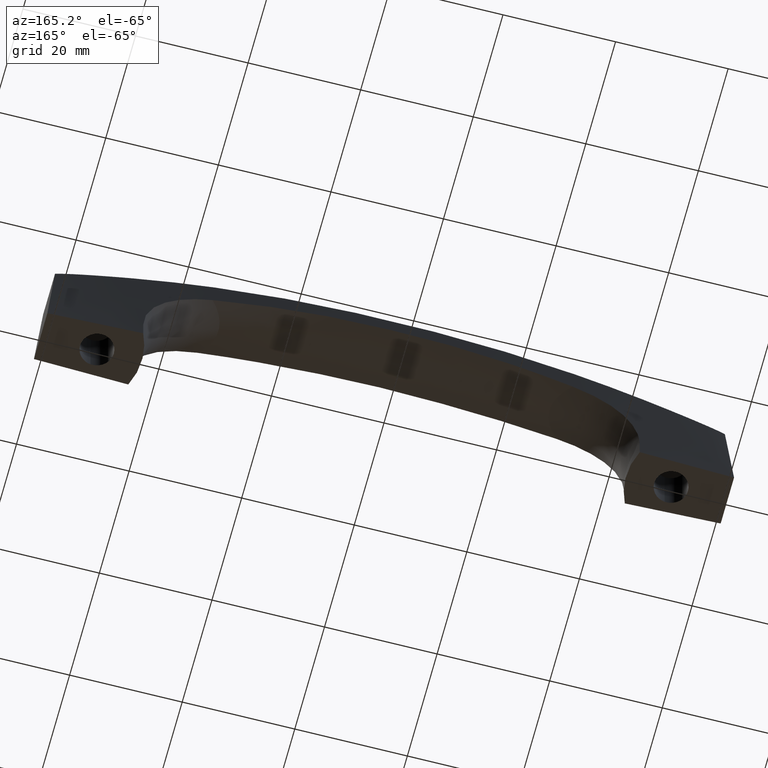
[diagram: clean part render]
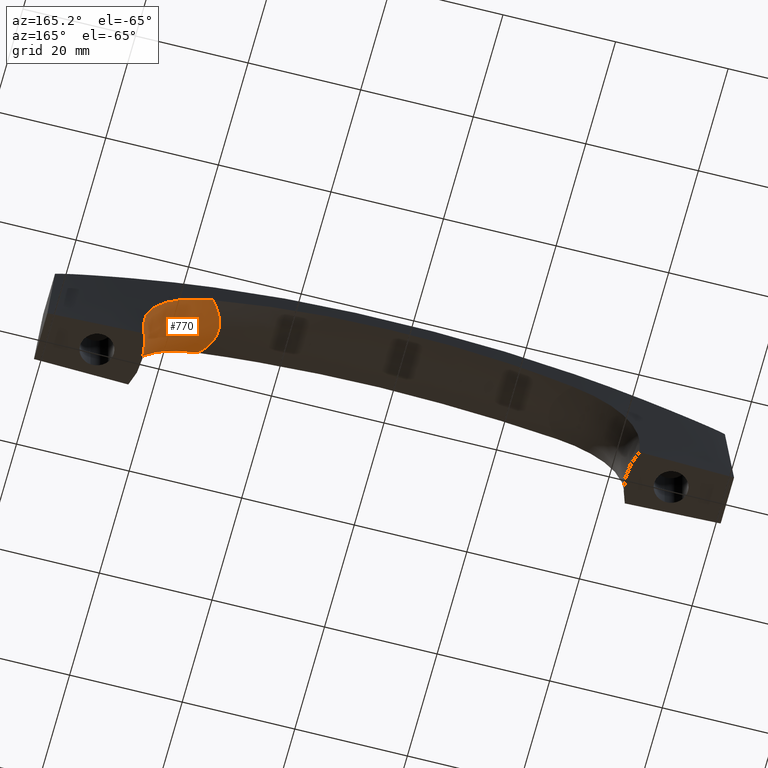
[diagram: same view with one face highlighted and labeled with its STEP entity id]
A machine part, auxiliary view. The second image highlights one B-rep face of the part: STEP entity #770.
In plain terms, the highlighted face is a freeform B-spline surface patch.
Its self-contained STEP definition (entity closure, byte-faithful):
#523=CARTESIAN_POINT('',(44.082250863787102,4.979584519048630,3.605350041675625));
#524=VERTEX_POINT('',#523);
#549=CARTESIAN_POINT('',(44.082879863556499,-4.979579647296540,3.603921780029675));
#550=VERTEX_POINT('',#549);
#558=CARTESIAN_POINT('',(44.082250863787102,4.979584519048630,3.605350041675625));
#559=CARTESIAN_POINT('',(44.061805541953468,4.934754980369749,3.572103161481472));
#560=CARTESIAN_POINT('',(44.041557719643492,4.889628672710915,3.539211358963760));
#561=CARTESIAN_POINT('',(43.814513336354047,4.375093358441645,3.170753038720376));
#562=CARTESIAN_POINT('',(43.628145494150367,3.869373818832388,2.871423095946262));
#563=CARTESIAN_POINT('',(43.172047555760876,2.298523049232081,2.148393828792288));
#564=CARTESIAN_POINT('',(43.003163163210182,1.175548169044361,1.894745840074199));
#565=CARTESIAN_POINT('',(42.998749687705697,-0.541893558222515,1.886695942256058));
#566=CARTESIAN_POINT('',(43.039393928722063,-1.122935938427230,1.947433257691355));
#567=CARTESIAN_POINT('',(43.198337025025189,-2.244635786605662,2.192246502187220));
#568=CARTESIAN_POINT('',(43.316006466822273,-2.788608503984232,2.375161768322997));
#569=CARTESIAN_POINT('',(43.633858211869757,-3.896059069223268,2.877745528504867));
#570=CARTESIAN_POINT('',(43.844006431972772,-4.455527119921518,3.214909279984090));
#571=CARTESIAN_POINT('',(44.082879863556499,-4.979579647296540,3.603921780029675));
#572=B_SPLINE_CURVE_WITH_KNOTS('',3,(#558,#559,#560,#561,#562,#563,#564,#565,#566,#567,#568,#569,#570,#571),.UNSPECIFIED.,.F.,.U.,(4,2,2,2,2,2,4),(0.007838878932541,0.007965946512911,0.009278175349758,0.011902633023452,0.013214861860299,0.014527090697146,0.015998461930642),.UNSPECIFIED.);
#573=EDGE_CURVE('',#524,#550,#572,.T.);
#578=CARTESIAN_POINT('',(45.080294106020588,6.752444310311134,5.134577590753950));
#579=CARTESIAN_POINT('',(45.070049700699457,6.737325087688528,5.177985632299731));
#580=CARTESIAN_POINT('',(42.689084896246413,3.223374223128531,15.266713665880658));
#581=CARTESIAN_POINT('',(33.648056535514471,6.737355394336897,20.341077216990222));
#582=CARTESIAN_POINT('',(33.609078922992460,6.752504843164640,20.362953774434754));
#583=CARTESIAN_POINT('',(44.956754143887970,6.570901175632478,4.926810901028103));
#584=CARTESIAN_POINT('',(44.946885867718812,6.555743561799802,4.970847555976422));
#585=CARTESIAN_POINT('',(42.642876779094841,3.016799228091930,15.252364965321513));
#586=CARTESIAN_POINT('',(33.385628095525313,6.555773946000112,20.288232555321287));
#587=CARTESIAN_POINT('',(33.345899553369676,6.570961861013964,20.309844557405079));
#588=CARTESIAN_POINT('',(44.836221595036456,6.383056194430378,4.725426405553452));
#589=CARTESIAN_POINT('',(44.826757819236590,6.367909003125281,4.770088495405320));
#590=CARTESIAN_POINT('',(42.607010864946311,2.815105927853508,15.245668223530979));
#591=CARTESIAN_POINT('',(33.130693077362082,6.367939367046693,20.235677428537226));
#592=CARTESIAN_POINT('',(33.090210873471008,6.383116836914239,20.256994418383204));
#593=CARTESIAN_POINT('',(44.473508681901670,5.780533417708178,4.123917735728925));
#594=CARTESIAN_POINT('',(44.465366685290313,5.765571454258140,4.170477266344490));
#595=CARTESIAN_POINT('',(42.527998415200628,2.205408679699893,15.249204216316175));
#596=CARTESIAN_POINT('',(32.367555061608627,5.765601448827734,20.074476401256028));
#597=CARTESIAN_POINT('',(32.324769735610658,5.780593315121526,20.094795479496696));
#598=CARTESIAN_POINT('',(44.242837747070247,5.342552049505785,3.746801991625277));
#599=CARTESIAN_POINT('',(44.235692968658356,5.327978716259035,3.794614292987360));
#600=CARTESIAN_POINT('',(42.518800412177349,1.826002037360240,15.283925729117994));
#601=CARTESIAN_POINT('',(31.886911911010984,5.328007932744717,19.967979304592518));
#602=CARTESIAN_POINT('',(31.842579695030686,5.342610388526801,19.987510592448686));
#603=CARTESIAN_POINT('',(43.824778134463294,4.401508337474752,3.070260974938749));
#604=CARTESIAN_POINT('',(43.819670443707913,4.388343948089008,3.120408129333154));
#605=CARTESIAN_POINT('',(42.568806032029570,1.164408323794642,15.401357345572350));
#606=CARTESIAN_POINT('',(31.022045628286513,4.388370342157891,19.769921529466373));
#607=CARTESIAN_POINT('',(30.974802596749186,4.401561032358701,19.787795306031949));
#608=CARTESIAN_POINT('',(43.636322024748488,3.893730465923430,2.768730211596710));
#609=CARTESIAN_POINT('',(43.632262223080851,3.881593175302522,2.819974522333848));
#610=CARTESIAN_POINT('',(42.628879115708841,0.881852455116946,15.485045368642902));
#611=CARTESIAN_POINT('',(30.635186014975332,3.881617510828556,19.677946335019293));
#612=CARTESIAN_POINT('',(30.586561627317643,3.893779047540044,19.694945039278853));
#613=CARTESIAN_POINT('',(43.174776266542054,2.314923449765486,2.040305799656462));
#614=CARTESIAN_POINT('',(43.173452052125739,2.306756390450942,2.094238962909838));
#615=CARTESIAN_POINT('',(42.838387876049914,0.240256459308241,15.740874043779161));
#616=CARTESIAN_POINT('',(29.698035550179835,2.306772767291519,19.447584968716328));
#617=CARTESIAN_POINT('',(29.645999977010302,2.314956136951894,19.462263481344436));
#618=CARTESIAN_POINT('',(43.003303239706170,1.184000520232820,1.784444589659977));
#619=CARTESIAN_POINT('',(43.003282080533815,1.179800046202783,1.839480281311706));
#620=CARTESIAN_POINT('',(42.997875471037446,0.106491392967733,15.902246451079192));
#621=CARTESIAN_POINT('',(29.365455047997749,1.179808469375395,19.355020329536394));
#622=CARTESIAN_POINT('',(29.311997430904686,1.184017331155586,19.368559896111922));
#623=CARTESIAN_POINT('',(42.998857831707944,-0.545737254486875,1.776325831967125));
#624=CARTESIAN_POINT('',(42.998867989871442,-0.543801638653960,1.831394573308226));
#625=CARTESIAN_POINT('',(43.001464272081328,-0.049085743046121,15.906182157336332));
#626=CARTESIAN_POINT('',(29.355155252572978,-0.543805520130713,19.353066703407727));
#627=CARTESIAN_POINT('',(29.301656771416326,-0.545745001102040,19.366579741085072));
#628=CARTESIAN_POINT('',(43.040110239124317,-1.130955790101828,1.837569237739479));
#629=CARTESIAN_POINT('',(43.039821830840530,-1.126936107395765,1.892385262209954));
#630=CARTESIAN_POINT('',(42.966279867934993,-0.101946975389102,15.870062967292180));
#631=CARTESIAN_POINT('',(29.434752030968195,-1.126944167985624,19.375290237335726));
#632=CARTESIAN_POINT('',(29.381580114530166,-1.130971877622747,19.389063970335023));
#633=CARTESIAN_POINT('',(43.201257074791741,-2.260089782233837,2.084338172562199));
#634=CARTESIAN_POINT('',(43.199877936318551,-2.252360209182155,2.138178393424138));
#635=CARTESIAN_POINT('',(42.851289299630672,-0.298646797091987,15.746738776321921));
#636=CARTESIAN_POINT('',(29.753989077762053,-2.252375708546218,19.459285834881264));
#637=CARTESIAN_POINT('',(29.702068507203222,-2.260120718439987,19.474003185651405));
#638=CARTESIAN_POINT('',(43.320520579815948,-2.807360628640942,2.268710204733941));
#639=CARTESIAN_POINT('',(43.318350026800324,-2.797985148824797,2.321823714649160));
#640=CARTESIAN_POINT('',(42.773221675744814,-0.443359477031166,15.661133959879635));
#641=CARTESIAN_POINT('',(29.992151604044079,-2.798003948182839,19.520761034229242));
#642=CARTESIAN_POINT('',(29.941159619583761,-2.807398153332244,19.536159591837762));
#643=CARTESIAN_POINT('',(43.775570233507175,-4.381683786826828,2.984912825330219));
#644=CARTESIAN_POINT('',(43.770650913637951,-4.368256487250542,3.035318932286654));
#645=CARTESIAN_POINT('',(42.563313986358594,-1.072826419074647,15.406369383658740));
#646=CARTESIAN_POINT('',(30.913874078946890,-4.368283408456470,19.748568750961407));
#647=CARTESIAN_POINT('',(30.866313749517911,-4.381737533399789,19.766296335634710));
#648=CARTESIAN_POINT('',(44.213901248004319,-5.346108190979845,3.691308788807143));
#649=CARTESIAN_POINT('',(44.206695101421758,-5.331315996259572,3.739195170055001));
#650=CARTESIAN_POINT('',(42.473991597033809,-1.774562419882943,15.253379574999498));
#651=CARTESIAN_POINT('',(31.818899900070630,-5.331345651880263,19.959616362052348));
#652=CARTESIAN_POINT('',(31.774498219720194,-5.346167406270965,19.979228095805098));
#653=CARTESIAN_POINT('',(44.829211345203667,-6.372073191735798,4.713020382093528));
#654=CARTESIAN_POINT('',(44.819773912272694,-6.356952464648384,4.757721192328099));
#655=CARTESIAN_POINT('',(42.605608009084875,-2.809398951611429,15.245213987249617));
#656=CARTESIAN_POINT('',(33.115097725676456,-6.356982775552329,20.232840966485369));
#657=CARTESIAN_POINT('',(33.074565837209740,-6.372133728197066,20.254142027692733));
#658=CARTESIAN_POINT('',(44.952890932220001,-6.565168085959815,4.919918281183925));
#659=CARTESIAN_POINT('',(44.943036993646771,-6.550029312336834,4.963976080527908));
#660=CARTESIAN_POINT('',(42.642042258883784,-3.014971919959586,15.251919684257906));
#661=CARTESIAN_POINT('',(33.376980753826686,-6.550059658787335,20.286702680436647));
#662=CARTESIAN_POINT('',(33.337224438864418,-6.565228695872246,20.308306899518598));
#663=CARTESIAN_POINT('',(45.079608601337156,-6.751437873785444,5.133274941342227));
#664=CARTESIAN_POINT('',(45.069368506821114,-6.736333826332615,5.176687157947462));
#665=CARTESIAN_POINT('',(42.689342294090750,-3.225816535722429,15.266653936213762));
#666=CARTESIAN_POINT('',(33.646430143316408,-6.736364102564008,20.340828803993695));
#667=CARTESIAN_POINT('',(33.607445446453376,-6.751498345873545,20.362703966082222));
#675=(BOUNDED_SURFACE()B_SPLINE_SURFACE(2,3,((#578,#583,#588,#593,#598,#603,#608,#613,#618,#623,#628,#633,#638,#643,#648,#653,#658,#663),(#579,#584,#589,#594,#599,#604,#609,#614,#619,#624,#629,#634,#639,#644,#649,#654,#659,#664),(#580,#585,#590,#595,#600,#605,#610,#615,#620,#625,#630,#635,#640,#645,#650,#655,#660,#665),(#581,#586,#591,#596,#601,#606,#611,#616,#621,#626,#631,#636,#641,#646,#651,#656,#661,#666),(#582,#587,#592,#597,#602,#607,#612,#617,#622,#627,#632,#637,#642,#647,#652,#657,#662,#667)),.UNSPECIFIED.,.F.,.F.,.U.)B_SPLINE_SURFACE_WITH_KNOTS((3,1,1,3),(4,2,2,2,2,2,2,2,4),(0.0,0.123362028490618,24.823048897400160,24.946658043230858),(0.0,0.976460286446232,3.027858903366601,5.079257520286970,9.182054754127709,11.233453371048080,13.284851987968450,17.387649221809170,18.381773931342121),.UNSPECIFIED.)GEOMETRIC_REPRESENTATION_ITEM()RATIONAL_B_SPLINE_SURFACE(((1.001329225078286,1.001368214203108,1.001407410601209,1.001528847603208,1.001610992594413,1.001767006329892,1.001841337008536,1.002029115071149,1.002106144662457,1.002108132125392,1.002089940801202,1.002020667296859,1.001969958792039,1.001784596914728,1.001616095345756,1.001409707533222,1.001369451653613,1.001329453452548),(1.000664612539143,1.000684107101554,1.000703705300604,1.000764423801604,1.000805496297206,1.000883503164946,1.000920668504268,1.001014557535574,1.001053072331229,1.001054066062696,1.001044970400601,1.001010333648429,1.000984979396020,1.000892298457364,1.000808047672878,1.000704853766611,1.000684725826807,1.000664726726274),(0.866930514949930,0.863027291299277,0.859103317401757,0.846946189473549,0.838722607284495,0.823103982733893,0.815662695857696,0.796864126297302,0.789152649726133,0.788953683671702,0.790774827571123,0.797709837827252,0.802786295331886,0.821342979195785,0.838211767920503,0.858873370220389,0.862903409419350,0.866907652271515),(1.000665943883033,1.000685477496718,1.000705114954646,1.000765955086221,1.000807109857755,1.000885272987920,1.000922512776405,1.001016589885096,1.001055181833128,1.001056177555226,1.001047063672810,1.001012357536711,1.000986952494965,1.000894085898962,1.000809666344312,1.000706265721246,1.000686097461394,1.000666058298902),(1.001331887766065,1.001370954993436,1.001410229909293,1.001531910172442,1.001614219715511,1.001770545975839,1.001845025552810,1.002033179770191,1.002110363666256,1.002112355110452,1.002094127345620,1.002024715073421,1.001973904989931,1.001788171797924,1.001619332688625,1.001412531442492,1.001372194922787,1.001332116597804)))REPRESENTATION_ITEM('')SURFACE());
#676=ORIENTED_EDGE('',*,*,#573,.T.);
#677=CARTESIAN_POINT('',(31.802017009434401,-5.160834543177030,19.919319875869650));
#678=VERTEX_POINT('',#677);
#679=CARTESIAN_POINT('',(31.802017009434401,-5.160834543177030,19.919319875869650));
#680=CARTESIAN_POINT('',(32.691539851712342,-5.141563303627655,19.667296589518589));
#681=CARTESIAN_POINT('',(33.552061479474489,-5.122936460799529,19.354723559195481));
#682=CARTESIAN_POINT('',(34.798723480071423,-5.095994306989473,18.793657488653700));
#683=CARTESIAN_POINT('',(35.206902775466972,-5.087185454150149,18.591178249858700));
#684=CARTESIAN_POINT('',(36.007864644051317,-5.069965167658074,18.154071476555000));
#685=CARTESIAN_POINT('',(36.400650359213117,-5.061554005675075,17.919450486631892));
#686=CARTESIAN_POINT('',(36.977540532800788,-5.049285566978782,17.541859475034080));
#687=CARTESIAN_POINT('',(37.167785739487613,-5.045254220951280,17.411712010661631));
#688=CARTESIAN_POINT('',(37.449951509929782,-5.039301229410651,17.209804457082321));
#689=CARTESIAN_POINT('',(37.543429090555279,-5.037333512795889,17.141413454365338));
#690=CARTESIAN_POINT('',(37.728319000058178,-5.033450985088471,17.003106248660451));
#691=CARTESIAN_POINT('',(37.819853848824792,-5.031533586167400,16.933103315160551));
#692=CARTESIAN_POINT('',(38.272982866651319,-5.022066877914060,16.578846924034870));
#693=CARTESIAN_POINT('',(38.620954954208557,-5.014878282334703,16.281880980233989));
#694=CARTESIAN_POINT('',(39.621128440782812,-4.994506073388788,15.350160590472640));
#695=CARTESIAN_POINT('',(40.229639616246239,-4.982422400602411,14.674634315657340));
#696=CARTESIAN_POINT('',(41.052263548453837,-4.967291659650552,13.577210124065820));
#697=CARTESIAN_POINT('',(41.311434995790812,-4.962773213474763,13.197367252574949));
#698=CARTESIAN_POINT('',(41.798938612787673,-4.954981217493461,12.408893653299209));
#699=CARTESIAN_POINT('',(42.023339237843039,-4.951770835192053,12.006642455043311));
#700=CARTESIAN_POINT('',(42.641939488034012,-4.944249474085741,10.777314663303921));
#701=CARTESIAN_POINT('',(42.981864554477333,-4.942049734815915,9.927780685954243));
#702=CARTESIAN_POINT('',(43.323172687693187,-4.942869811698580,8.831278665279188));
#703=CARTESIAN_POINT('',(43.387228154627593,-4.943212156062575,8.610238177892938));
#704=CARTESIAN_POINT('',(43.506990655257830,-4.944254888572649,8.164703454420714));
#705=CARTESIAN_POINT('',(43.562779484670848,-4.944957046415500,7.939820224847321));
#706=CARTESIAN_POINT('',(43.716808943542482,-4.947586659932695,7.263875905623732));
#707=CARTESIAN_POINT('',(43.801924278721458,-4.950034885818505,6.811122657174763));
#708=CARTESIAN_POINT('',(44.007083324495383,-4.959369581489566,5.446839329922986));
#709=CARTESIAN_POINT('',(44.077307010174707,-4.968241734188141,4.529287907441254));
#710=CARTESIAN_POINT('',(44.082879863556499,-4.979579647296540,3.603921780029675));
#711=B_SPLINE_CURVE_WITH_KNOTS('',3,(#679,#680,#681,#682,#683,#684,#685,#686,#687,#688,#689,#690,#691,#692,#693,#694,#695,#696,#697,#698,#699,#700,#701,#702,#703,#704,#705,#706,#707,#708,#709,#710),.UNSPECIFIED.,.F.,.U.,(4,2,2,2,2,2,2,2,2,2,2,2,2,2,2,4),(0.000010611798683,0.124999999999999,0.187499999999999,0.250000000000000,0.281250000000000,0.296874999999999,0.312499999999999,0.374999999999999,0.500000000000000,0.562500000000000,0.625000000000000,0.750000000000000,0.781250000000000,0.812500000000000,0.875000000000000,0.999994305615757),.UNSPECIFIED.);
#712=EDGE_CURVE('',#678,#550,#711,.T.);
#713=ORIENTED_EDGE('',*,*,#712,.F.);
#714=CARTESIAN_POINT('',(31.803280635618300,5.160807104095160,19.918591792573899));
#715=VERTEX_POINT('',#714);
#716=CARTESIAN_POINT('',(31.802017009434401,-5.160834543177030,19.919319875869650));
#717=CARTESIAN_POINT('',(31.544508817987669,-4.901500882649113,19.861307578703041));
#718=CARTESIAN_POINT('',(30.923088351541612,-4.210686773737158,19.717622094367272));
#719=CARTESIAN_POINT('',(30.116905773373659,-2.999274076952050,19.520848045497718));
#720=CARTESIAN_POINT('',(29.541290944065729,-1.514774810855222,19.374282202826080));
#721=CARTESIAN_POINT('',(29.348528958815368,0.000610195379206,19.324010073250960));
#722=CARTESIAN_POINT('',(29.543432987319640,1.515914695845538,19.373757568973758));
#723=CARTESIAN_POINT('',(30.119720263575331,3.000685804611912,19.520282631177651));
#724=CARTESIAN_POINT('',(30.925697905249940,4.211627782066718,19.717024599959149));
#725=CARTESIAN_POINT('',(31.546325443138080,4.901908171230543,19.860666952074670));
#726=CARTESIAN_POINT('',(31.803280635618300,5.160807104095160,19.918591792573899));
#727=B_SPLINE_CURVE_WITH_KNOTS('',3,(#716,#717,#718,#719,#720,#721,#722,#723,#724,#725,#726),.UNSPECIFIED.,.F.,.U.,(4,1,1,1,1,1,1,1,4),(0.293232866177284,0.332352932474829,0.392498532906652,0.447638232598638,0.500046093444396,0.552502353411976,0.607667971942981,0.667804671063672,0.706851880898741),.UNSPECIFIED.);
#728=EDGE_CURVE('',#678,#715,#727,.T.);
#729=ORIENTED_EDGE('',*,*,#728,.T.);
#730=CARTESIAN_POINT('',(44.082250863787102,4.979584519048630,3.605350041675625));
#731=CARTESIAN_POINT('',(44.076956136583561,4.968247000714896,4.529910529425358));
#732=CARTESIAN_POINT('',(44.007331977542329,4.959408988374667,5.443002201723352));
#733=CARTESIAN_POINT('',(43.805695970149387,4.950091536803920,6.795337720618992));
#734=CARTESIAN_POINT('',(43.722183507703640,4.947643733685406,7.243227677287054));
#735=CARTESIAN_POINT('',(43.521267447603897,4.944113636639386,8.132965673360268));
#736=CARTESIAN_POINT('',(43.403866522215147,4.943031418885463,8.574814190222469));
#737=CARTESIAN_POINT('',(43.200749320316717,4.942477044523661,9.232770628349948));
#738=CARTESIAN_POINT('',(43.128529038276092,4.942470682526870,9.451284593309547));
#739=CARTESIAN_POINT('',(42.974767407126023,4.942820614412618,9.886650742394291));
#740=CARTESIAN_POINT('',(42.893084267872560,4.943178760885633,10.103777831251341));
#741=CARTESIAN_POINT('',(42.636188150191089,4.944788833756206,10.745972959732610));
#742=CARTESIAN_POINT('',(42.448462725798088,4.946576347671961,11.163950007605660));
#743=CARTESIAN_POINT('',(41.835562028518652,4.953972551166575,12.387213269093181));
#744=CARTESIAN_POINT('',(41.360813408169079,4.961633142751754,13.161924545840810));
#745=CARTESIAN_POINT('',(40.544753458475491,4.976577922340746,14.259895167905119));
#746=CARTESIAN_POINT('',(40.255371310471062,4.982131506709964,14.615178453878240));
#747=CARTESIAN_POINT('',(39.794292721161341,4.991183619009651,15.131451276980240));
#748=CARTESIAN_POINT('',(39.635675085390488,4.994330353737659,15.301172847173531));
#749=CARTESIAN_POINT('',(39.312524354333647,5.000800832937718,15.631709399011600));
#750=CARTESIAN_POINT('',(39.147779348805628,5.004128581592381,15.792803621766231));
#751=CARTESIAN_POINT('',(38.308651043559713,5.021209609160410,16.577990581863450));
#752=CARTESIAN_POINT('',(37.588301452235427,5.036286511420092,17.141551467323129));
#753=CARTESIAN_POINT('',(36.439913698738323,5.060700697399872,17.897529512785820));
#754=CARTESIAN_POINT('',(36.045748018006613,5.069139392548497,18.134550376915520));
#755=CARTESIAN_POINT('',(35.538968321746509,5.080034969289716,18.412296207743630));
#756=CARTESIAN_POINT('',(35.436826900560263,5.082233187308512,18.466960019591252));
#757=CARTESIAN_POINT('',(35.231791287770228,5.086649511664565,18.574099401353418));
#758=CARTESIAN_POINT('',(34.922958118756682,5.093307073594882,18.731614163364220));
#759=CARTESIAN_POINT('',(34.610346522083297,5.100059236389988,18.879697972079612));
#760=CARTESIAN_POINT('',(33.980217505368437,5.113679345061160,19.163621037168241));
#761=CARTESIAN_POINT('',(33.553599979911318,5.122912600558392,19.336600982693142));
#762=CARTESIAN_POINT('',(32.687820854089523,5.141652261266620,19.651090195621510));
#763=CARTESIAN_POINT('',(32.248660416214271,5.151158047474998,19.792602396418790));
#764=CARTESIAN_POINT('',(31.803280635618300,5.160807104095160,19.918591792573899));
#765=B_SPLINE_CURVE_WITH_KNOTS('',3,(#730,#731,#732,#733,#734,#735,#736,#737,#738,#739,#740,#741,#742,#743,#744,#745,#746,#747,#748,#749,#750,#751,#752,#753,#754,#755,#756,#757,#758,#759,#760,#761,#762,#763,#764),.UNSPECIFIED.,.F.,.U.,(4,2,2,2,2,2,2,2,2,2,2,2,2,2,1,2,2,4),(0.000007047558433,0.125000000000000,0.187500000000000,0.250000000000000,0.281250000000000,0.312500000000000,0.375000000000000,0.500000000000000,0.562499999999999,0.593749999999999,0.624999999999999,0.750000000000000,0.812500000000000,0.828125000000000,0.843750000000000,0.875000000000000,0.937500000000000,0.999991775250529),.UNSPECIFIED.);
#766=EDGE_CURVE('',#524,#715,#765,.T.);
#767=ORIENTED_EDGE('',*,*,#766,.F.);
#768=EDGE_LOOP('',(#676,#713,#729,#767));
#769=FACE_OUTER_BOUND('',#768,.T.);
#770=ADVANCED_FACE('',(#769),#675,.F.);